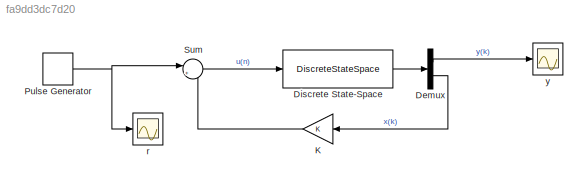
MODEL slx_fa9dd3dc7d20
KIND model
CONFIG AbsTol = auto
CONFIG FixedStep = auto
CONFIG MaxStep = auto
CONFIG MinStep = auto
CONFIG RelTol = 1e-3
CONFIG SampleTimeConstraint = Unconstrained
CONFIG Solver = ode45
CONFIG SolverMode = Auto
CONFIG SolverName = ode45
CONFIG StartTime = 0.0
CONFIG StopTime = 10
BLOCK [Demux] Demux
  DisplayOption = bar
  Outputs = 2
  Ports = [1, 2]
BLOCK [DiscreteStateSpace] Discrete State-Space
  A = A
  B = B
  C = H
  D = D
  SampleTime = 0.02
BLOCK [Gain] K
  Gain = K
  Multiplication = Matrix(K*u) (u vector)
  OutDataTypeStr = Inherit: Inherit via internal rule
  ParamDataTypeStr = Inherit: Inherit via internal rule
  SaturateOnIntegerOverflow = off
BLOCK [DiscretePulseGenerator] Pulse Generator
  Period = 20
  PhaseDelay = 1
  Ports = [0, 1]
  PulseType = Time based
BLOCK [Sum] Sum
  IconShape = round
  InputSameDT = off
  Inputs = |+-
  OutDataTypeStr = Inherit: Inherit via internal rule
  Ports = [2, 1]
  SaturateOnIntegerOverflow = off
BLOCK [Scope] r
  Floating = off
  NumInputPorts = 1
  Ports = [1]
  SampleInput = on
  SaveName = r_c
  SaveToWorkspace = on
  ZoomMode = yonly
BLOCK [Scope] y
  Floating = off
  NumInputPorts = 1
  Ports = [1]
  SampleInput = on
  SaveName = y_c
  SaveToWorkspace = on
  ZoomMode = xonly
LINE Demux:1 -> y:1
LINE Demux:2 -> K:1
LINE Discrete State-Space:1 -> Demux:1
LINE K:1 -> Sum:2
NET Pulse Generator:1 -> Sum:1, r:1
LINE Sum:1 -> Discrete State-Space:1
note: NET lines group one-source signal fan-out (src -> all destinations, sorted); 1:1 wires keep LINE
